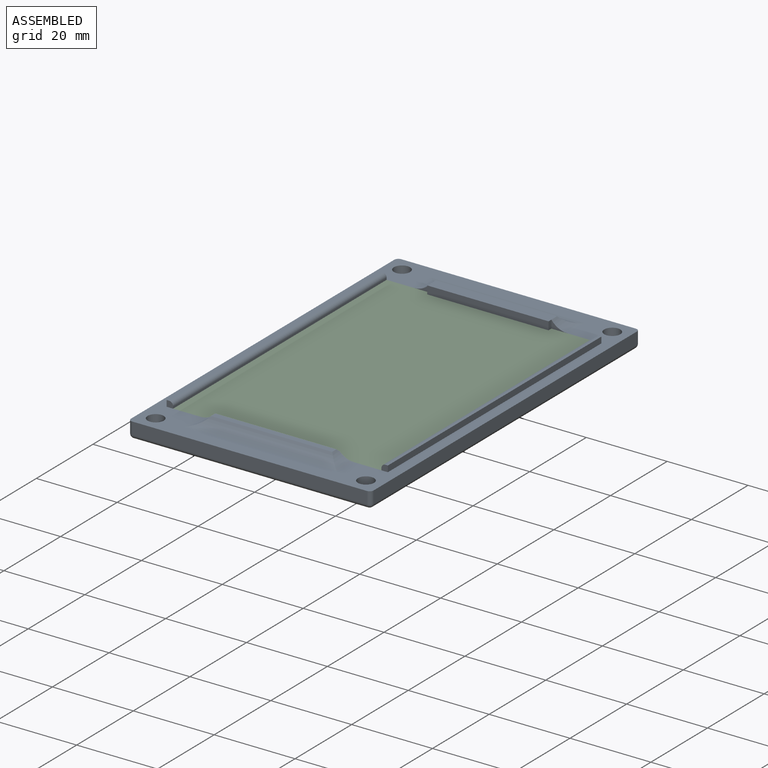
[diagram: assembled view]
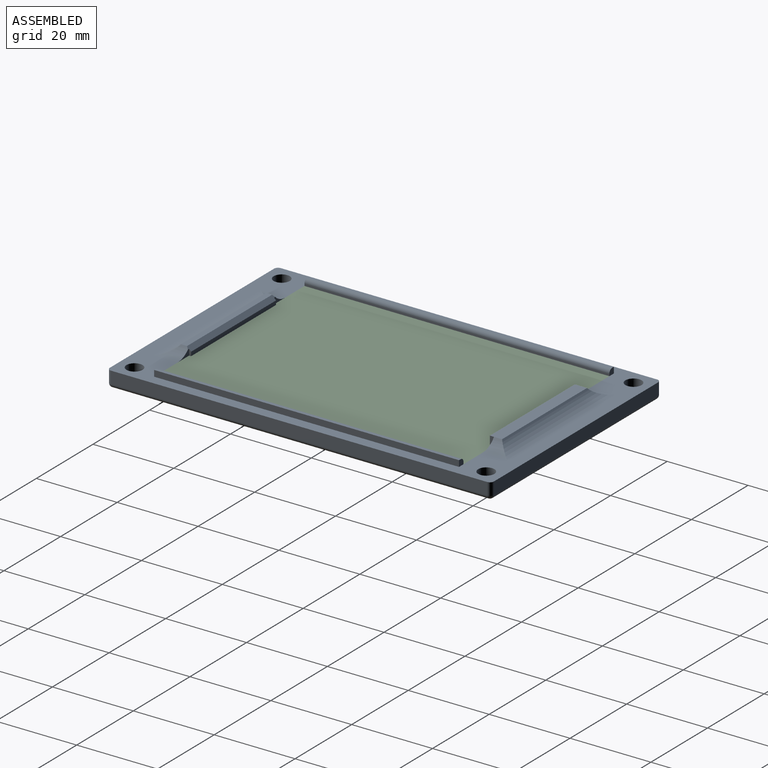
[diagram: assembled view, second angle]
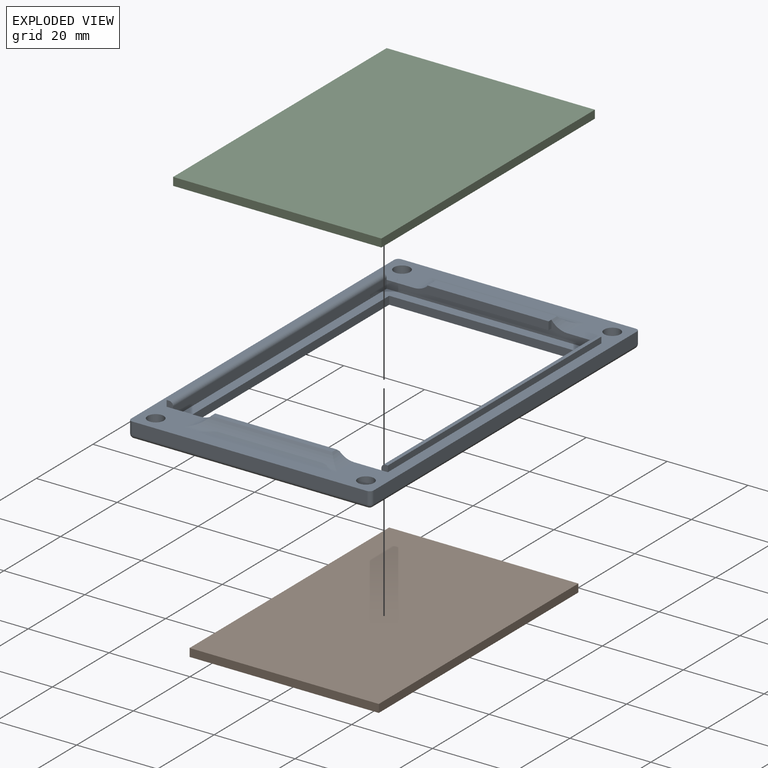
[diagram: exploded view]
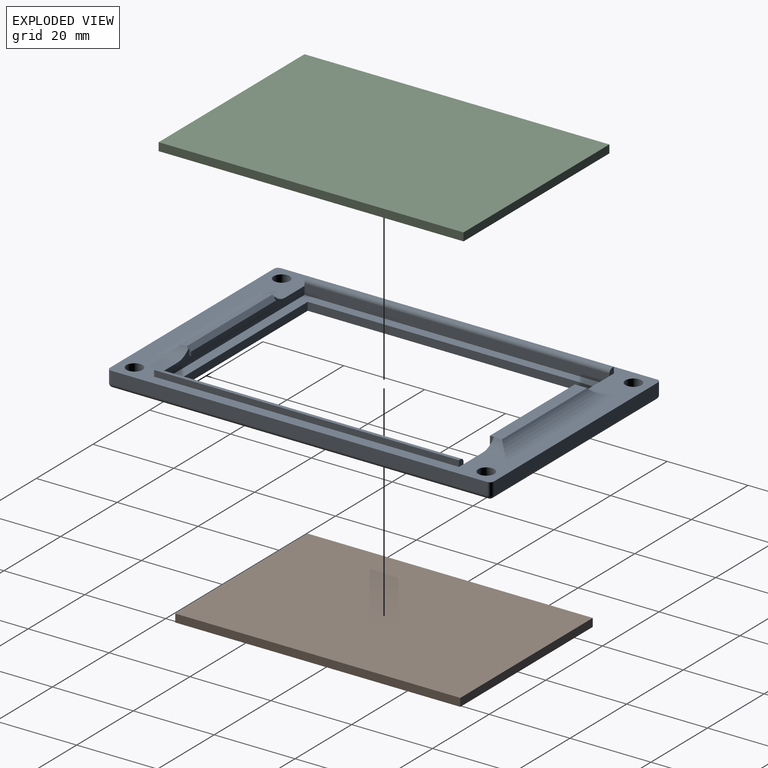
[diagram: exploded view, second angle]
ASSEMBLY  parts=3 mates=2
PART A: 70 faces, bbox 60x95x6 mm
  f0: plane 95x60mm, normal (0,0,1), area 1068.5mm2, adj f5,f6,f7,f8,f11,f12,f13,f14
  f1: plane 3x3mm, normal (0,0,-1), area 1.9mm2, adj f45,f52,f56
  f2: plane 93x58mm, normal (0,0,-1), area 1973.8mm2, adj f15,f16,f17,f18,f44,f45,f46,f47
  f3: plane 3x3mm, normal (0,0,-1), area 1.9mm2, adj f46,f56,f59
  f4: plane 3x3mm, normal (0,0,-1), area 1.9mm2, adj f47,f55,f59
  f5: cylinder r=2mm len=4mm, axis (0,0,1), area 25.1mm2, adj f0,f51
  f6: cylinder r=2mm len=4mm, axis (0,0,1), area 25.1mm2, adj f0,f50
  f7: cylinder r=2mm len=4mm, axis (0,0,1), area 25.1mm2, adj f0,f49
  f8: cylinder r=2mm len=4mm, axis (0,0,1), area 25.1mm2, adj f0,f48
  f9: plane 75.4x51.5mm, normal (0,0,1), area 583.7mm2, adj f15,f16,f17,f18,f19,f20,f21,f22
  f10: plane 3x3mm, normal (0,0,-1), area 1.9mm2, adj f44,f52,f55
  f11: plane 58x3mm, normal (0,1,0), area 174mm2, adj f0,f23,f26,f52
  f12: plane 93x3mm, normal (-1,0,0), area 279mm2, adj f0,f23,f24,f55
  f13: plane 58x3mm, normal (0,-1,0), area 174mm2, adj f0,f24,f25,f59
  f14: plane 93x3mm, normal (1,0,0), area 279mm2, adj f0,f25,f26,f56
  f15: plane 46.8x2mm, normal (0,-1,0), area 93.6mm2, adj f2,f9,f16,f18
  f16: plane 70.5x2mm, normal (1,0,0), area 141mm2, adj f2,f9,f15,f17
  f17: plane 46.8x2mm, normal (0,1,0), area 93.6mm2, adj f2,f9,f16,f18
  f18: plane 70.5x2mm, normal (-1,0,0), area 141mm2, adj f2,f9,f15,f17
  f19: plane 75.4x2.5mm, normal (1,0,0), area 188.5mm2, adj f9,f20,f22,f64,f66,f68
  f20: plane 51.5x4mm, normal (0,-1,0), area 107.8mm2, adj f0,f9,f19,f21,f27,f28,f33,f35
  f21: plane 75.4x2.5mm, normal (-1,0,0), area 188.5mm2, adj f9,f20,f22,f60,f62,f69
  f22: plane 51.5x3.5mm, normal (0,1,0), area 107.6mm2, adj f0,f9,f19,f21,f30,f31,f38,f40
  f23: cylinder r=1mm len=3mm, axis (0,0,1), area 4.7mm2, adj f0,f11,f12,f53
  f24: cylinder r=1mm len=3mm, axis (0,0,-1), area 4.7mm2, adj f0,f12,f13,f57
  f25: cylinder r=1mm len=3mm, axis (0,0,1), area 4.7mm2, adj f0,f13,f14,f58
  f26: cylinder r=1mm len=3mm, axis (0,0,-1), area 4.7mm2, adj f0,f11,f14,f54
  f27: plane 2x1mm, normal (-1,0,0), area 2mm2, adj f20,f29,f33,f34
  f28: plane 2x1mm, normal (1,0,0), area 2mm2, adj f20,f29,f33,f34
  f29: plane 30x3mm, normal (0,0,1), area 90mm2, adj f27,f28,f34,f35,f36,f37
  f30: plane 1.5x0.5mm, normal (-1,0,0), area 0.6mm2, adj f22,f38,f39,f43
  f31: plane 1.5x0.5mm, normal (1,0,0), area 0.6mm2, adj f22,f38,f39,f43
  f32: plane 30x1.5mm, normal (0,0,1), area 45mm2, adj f40,f41,f42,f43
  f33: plane 30x1mm, normal (0,0,-1), area 30mm2, adj f20,f27,f28,f34
  f34: plane 30x2mm, normal (0,-1,0), area 60mm2, adj f27,f28,f29,f33
  f35: cylinder r=5mm len=6mm, axis (0,-1,0), area 17.8mm2, adj f0,f20,f29,f36
  f36: cylinder r=5mm len=38mm, axis (1,0,0), area 156.2mm2, adj f0,f29,f35,f37
  f37: cylinder r=5mm len=6mm, axis (0,-1,0), area 17.8mm2, adj f0,f20,f29,f36
  f38: plane 30x0.5mm, normal (0,0,-1), area 15mm2, adj f22,f30,f31,f39
  f39: plane 30x1mm, normal (0,1,0), area 30mm2, adj f30,f31,f38,f43
  f40: cylinder r=5mm len=6mm, axis (0,1,0), area 17.7mm2, adj f0,f22,f32,f41,f43
  f41: cylinder r=5mm len=38mm, axis (-1,0,0), area 156.2mm2, adj f0,f32,f40,f42
  f42: cylinder r=5mm len=6mm, axis (0,1,0), area 17.7mm2, adj f0,f22,f32,f41,f43
  f43: plane 30.87x1.01mm, normal (0,0.71,0.71), area 42.7mm2, adj f22,f30,f31,f32,f39,f40,f42
  f44: cylinder r=3mm len=6mm, axis (0,0,-1), area 18.8mm2, adj f2,f10,f48
  f45: cylinder r=3mm len=6mm, axis (0,0,-1), area 18.8mm2, adj f1,f2,f49
  f46: cylinder r=3mm len=6mm, axis (0,0,-1), area 18.8mm2, adj f2,f3,f50
  f47: cylinder r=3mm len=6mm, axis (0,0,-1), area 18.8mm2, adj f2,f4,f51
  f48: cone r=3mm half-angle=45deg, axis (0,0,-1), area 22.2mm2, adj f8,f44
  f49: cone r=3mm half-angle=45deg, axis (0,0,-1), area 22.2mm2, adj f7,f45
  f50: cone r=3mm half-angle=45deg, axis (0,0,-1), area 22.2mm2, adj f6,f46
  f51: cone r=3mm half-angle=45deg, axis (0,0,-1), area 22.2mm2, adj f5,f47
  f52: cylinder r=1mm len=58mm, axis (-1,0,0), area 91.1mm2, adj f1,f2,f10,f11,f53,f54
  f53: sphere r=1mm, area 1.6mm2, adj f23,f52,f55
  f54: sphere r=1mm, area 1.6mm2, adj f26,f52,f56
  f55: cylinder r=1mm len=93mm, axis (0,-1,0), area 146.1mm2, adj f2,f4,f10,f12,f53,f57
  f56: cylinder r=1mm len=93mm, axis (0,1,0), area 146.1mm2, adj f1,f2,f3,f14,f54,f58
  f57: sphere r=1mm, area 1.6mm2, adj f24,f55,f59
  f58: sphere r=1mm, area 1.6mm2, adj f25,f56,f59
  f59: cylinder r=1mm len=58mm, axis (1,0,0), area 91.1mm2, adj f2,f3,f4,f13,f57,f58
  f60: plane 1.6x1.5mm, normal (0,-1,0), area 2.2mm2, adj f0,f21,f61,f63,f69
  f61: plane 75.4x1.5mm, normal (1,0,0), area 113.1mm2, adj f0,f60,f62,f63
  f62: plane 1.6x1.5mm, normal (0,1,0), area 2.2mm2, adj f0,f21,f61,f63,f69
  f63: plane 75.4x0.6mm, normal (0,0,1), area 45.2mm2, adj f60,f61,f62,f69
  f64: plane 1.6x1.5mm, normal (0,1,0), area 2.2mm2, adj f0,f19,f65,f67,f68
  f65: plane 75.4x1.5mm, normal (-1,0,0), area 113.1mm2, adj f0,f64,f66,f67
  f66: plane 1.6x1.5mm, normal (0,-1,0), area 2.2mm2, adj f0,f19,f65,f67,f68
  f67: plane 75.4x0.6mm, normal (0,0,1), area 45.2mm2, adj f64,f65,f66,f68
  f68: cylinder r=1mm len=75.4mm, axis (0,-1,0), area 118.4mm2, adj f19,f64,f66,f67
  f69: cylinder r=1mm len=75.4mm, axis (0,1,0), area 118.4mm2, adj f21,f60,f62,f63
PART B: 6 faces, bbox 46.8x70.5x2 mm
  f0: plane 46.8x2mm, normal (0,1,0), area 93.6mm2, adj f1,f3,f4,f5
  f1: plane 70.5x2mm, normal (-1,0,0), area 141mm2, adj f0,f2,f4,f5
  f2: plane 46.8x2mm, normal (0,-1,0), area 93.6mm2, adj f1,f3,f4,f5
  f3: plane 70.5x2mm, normal (1,0,0), area 141mm2, adj f0,f2,f4,f5
  f4: plane 70.5x46.8mm, normal (0,0,1), area 3299.4mm2, adj f0,f1,f2,f3
  f5: plane 70.5x46.8mm, normal (0,0,-1), area 3299.4mm2, adj f0,f1,f2,f3
PART C: 6 faces, bbox 51.5x75.4x2 mm
  f0: plane 51.5x2mm, normal (0,1,0), area 103mm2, adj f1,f3,f4,f5
  f1: plane 75.4x2mm, normal (-1,0,0), area 150.8mm2, adj f0,f2,f4,f5
  f2: plane 51.5x2mm, normal (0,-1,0), area 103mm2, adj f1,f3,f4,f5
  f3: plane 75.4x2mm, normal (1,0,0), area 150.8mm2, adj f0,f2,f4,f5
  f4: plane 75.4x51.5mm, normal (0,0,1), area 3883.1mm2, adj f0,f1,f2,f3
  f5: plane 75.4x51.5mm, normal (0,0,-1), area 3883.1mm2, adj f0,f1,f2,f3
PLACE A at identity
PLACE B at identity
PLACE C t=(0,0,2)mm
MATE fastened C.f4 <-> A.f0  axis (0,0,1) through (-25.75,37.7,4)mm
MATE fastened B.f4 <-> A.f9  axis (0,0,1) through (-23.4,-35.25,2)mm
